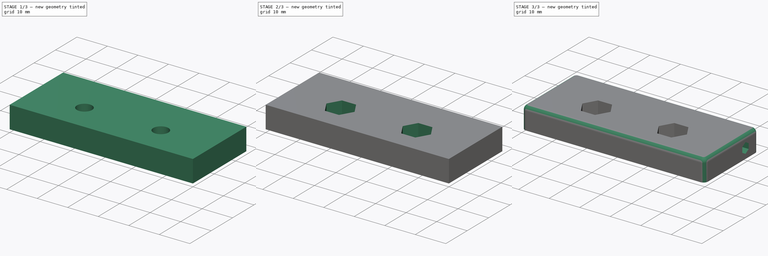
[diagram: build sequence overview — one tinted view per stage of 3, left to right]
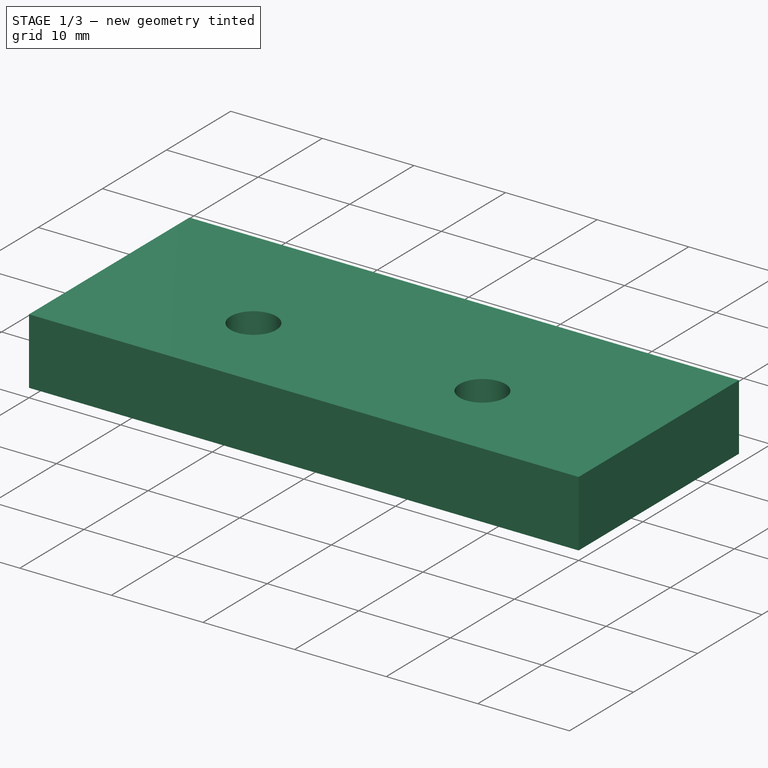
[diagram: stage 1 of 3 — iso view after this stage's code; geometry added in this stage tinted green]
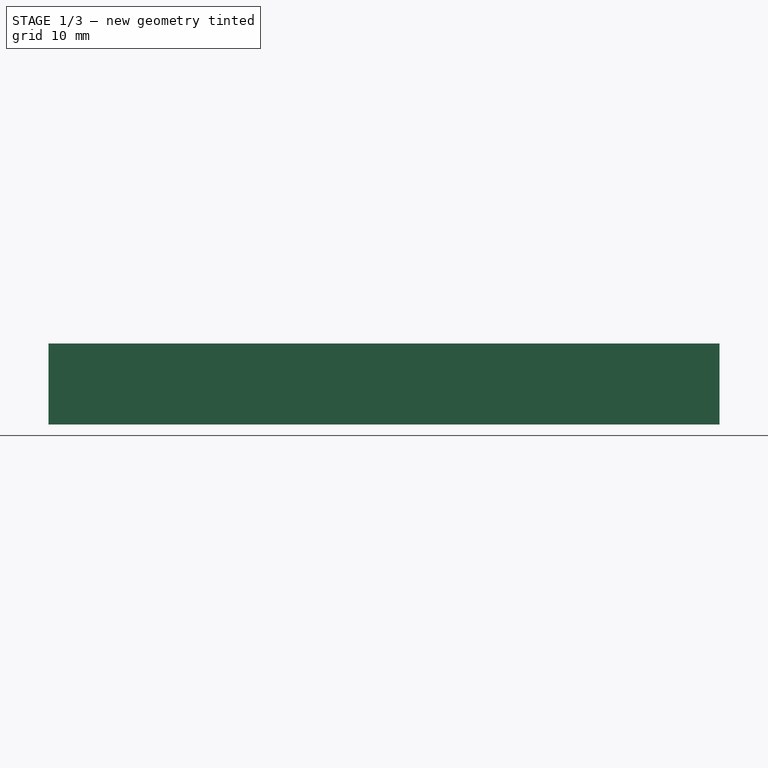
[diagram: stage 1 of 3 — front view after this stage's code; geometry added in this stage tinted green]
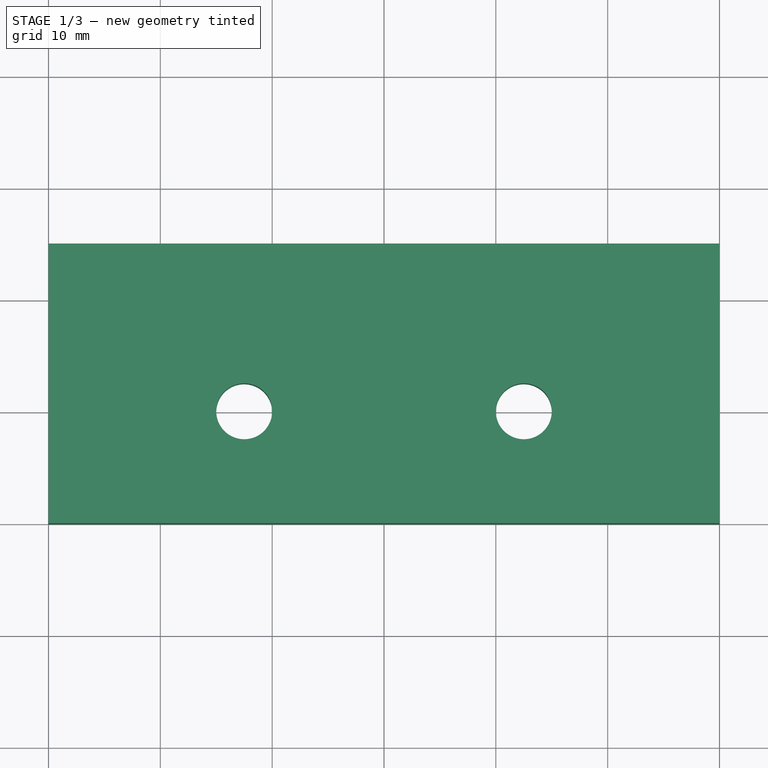
[diagram: stage 1 of 3 — top view after this stage's code; geometry added in this stage tinted green]
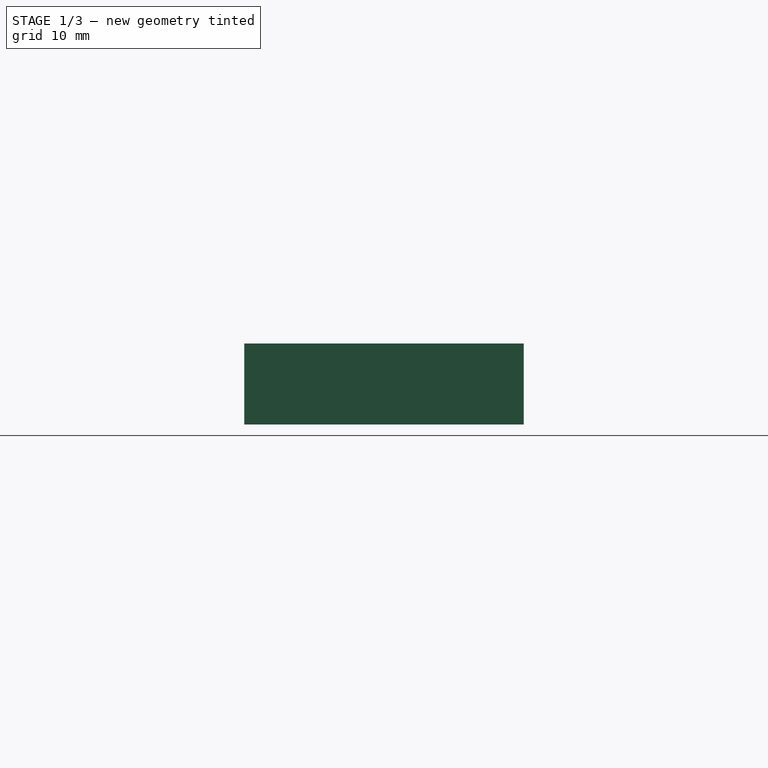
[diagram: stage 1 of 3 — right view after this stage's code; geometry added in this stage tinted green]
FCSTD DOCUMENT  (FreeCAD 0.18R15969 (Git))
Label: phrozen_hexholder
License: All rights reserved
LicenseURL: http://en.wikipedia.org/wiki/All_rights_reserved
objects: Sketcher::SketchObject×4, PartDesign::Pocket×2, PartDesign::Pad×1, PartDesign::Hole×1, PartDesign::Fillet×1, PartDesign::Body×1
note: 14 computed .brp shape members not serialized (recipe doc carries the construction recipe); baked Part::Feature solids carry a one-line shape summary decoded from their .brp

FEATURE [Sketcher::SketchObject] Sketch
  MapMode = 5
  Support = -> [XY_Plane]
  sketch-geometry (6):
    g0: LineSegment StartX=-30 StartY=-10 StartZ=0 EndX=30 EndY=-10 EndZ=0
    g1: LineSegment StartX=30 StartY=-10 StartZ=0 EndX=30 EndY=15 EndZ=0
    g2: LineSegment StartX=30 StartY=15 StartZ=0 EndX=-30 EndY=15 EndZ=0
    g3: LineSegment StartX=-30 StartY=15 StartZ=0 EndX=-30 EndY=-10 EndZ=0
    g4: LineSegment [constr] StartX=-30 StartY=15 StartZ=0 EndX=0 EndY=0 EndZ=0
    g5: LineSegment [constr] StartX=0 StartY=0 StartZ=0 EndX=30 EndY=15 EndZ=0
  constraints (16):
    c: Coincident(g0,g1)
    c: Coincident(g1,g2)
    c: Coincident(g2,g3)
    c: Coincident(g3,g0)
    c: Horizontal(g0)
    c: Horizontal(g2)
    c: Vertical(g1)
    c: Vertical(g3)
    c: Coincident(g4,g2)
    c: Coincident(g4,g-1)
    c: Coincident(g5,g-1)
    c: Coincident(g5,g1)
    c: Equal(g4,g5)
    c: DistanceX(g2,g2) = 60
    c: DistanceY(g3,g3) = 25
    c: DistanceY(g0,g-1) = 10
FEATURE [PartDesign::Pad] Pad
  Length = 7.25
  Length2 = 100
  Profile = -> Sketch
  Refine = true
  Type = 0
FEATURE [Sketcher::SketchObject] Sketch001
  MapMode = 5
  Placement = pos=(0,0,0) rot=(1,0,0;3.14159rad)
  Support = -> [Pad]
  sketch-geometry (4):
    g0: Circle CenterX=-12.5 CenterY=0 CenterZ=0 NormalX=0 NormalY=0 NormalZ=1 AngleXU=0 Radius=2.5
    g1: Circle CenterX=12.5 CenterY=0 CenterZ=0 NormalX=0 NormalY=0 NormalZ=1 AngleXU=0 Radius=2.5
    g2: LineSegment [constr] StartX=-12.5 StartY=0 StartZ=0 EndX=0 EndY=0 EndZ=0
    g3: LineSegment [constr] StartX=0 StartY=0 StartZ=0 EndX=12.5 EndY=0 EndZ=0
  constraints (10):
    c: PointOnObject(g0,g-1)
    c: PointOnObject(g1,g-1)
    c: DistanceX(g0,g1) = 25
    c: Coincident(g2,g0)
    c: Coincident(g2,g-1)
    c: Coincident(g3,g-1)
    c: Coincident(g3,g1)
    c: Equal(g2,g3)
    c: Radius(g0) = 2.5
    c: Equal(g0,g1)
FEATURE [PartDesign::Hole] Hole
  BaseFeature = -> Pad
  Depth = 25
  DepthType = 0
  Diameter = 5
  DrillPoint = 1
  DrillPointAngle = 118
  HoleCutCountersinkAngle = 90
  HoleCutDepth = 1.6
  HoleCutDiameter = 6.2
  HoleCutType = 1
  ModelActualThread = false
  Profile = -> Sketch001
  Refine = true
  Tapered = false
  TaperedAngle = 90
  ThreadAngle = 0
  ThreadClass = 0
  ThreadCutOffInner = 0
  ThreadCutOffOuter = 0
  ThreadDirection = 0
  ThreadFit = 0
  ThreadPitch = 0
  ThreadSize = 0
  ThreadType = 0
  Threaded = false
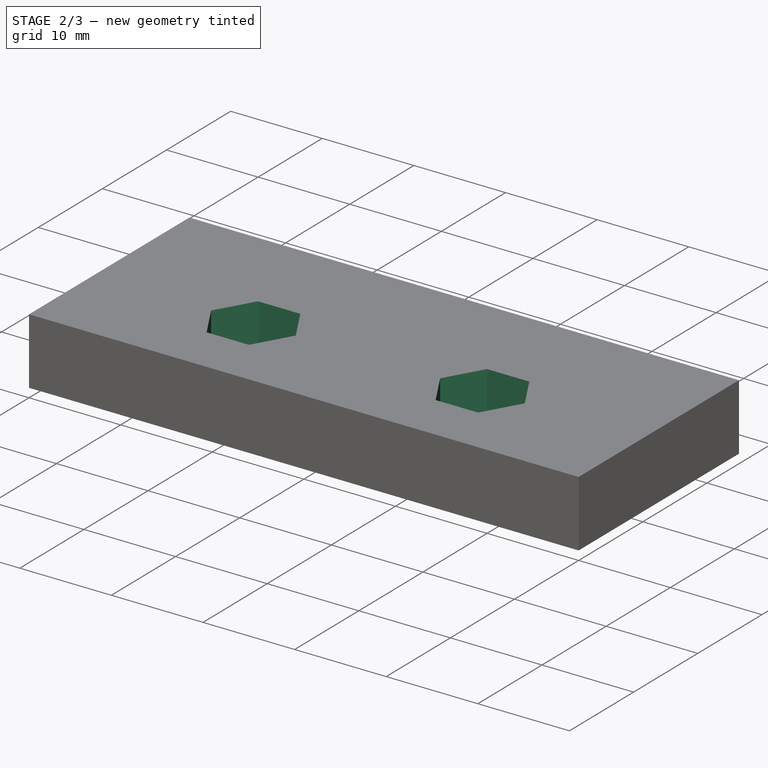
[diagram: stage 2 of 3 — iso view after this stage's code; geometry added in this stage tinted green]
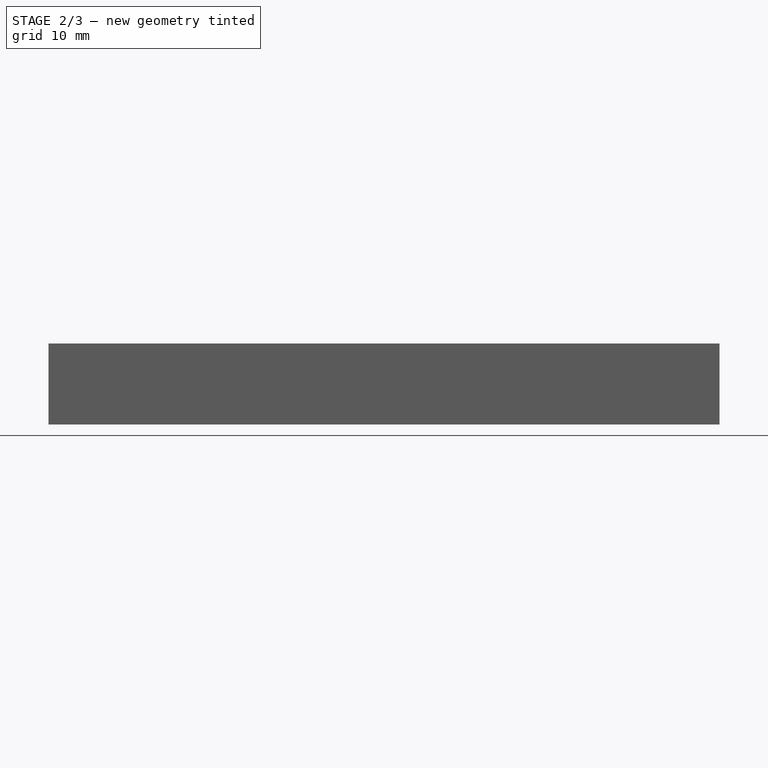
[diagram: stage 2 of 3 — front view after this stage's code; geometry added in this stage tinted green]
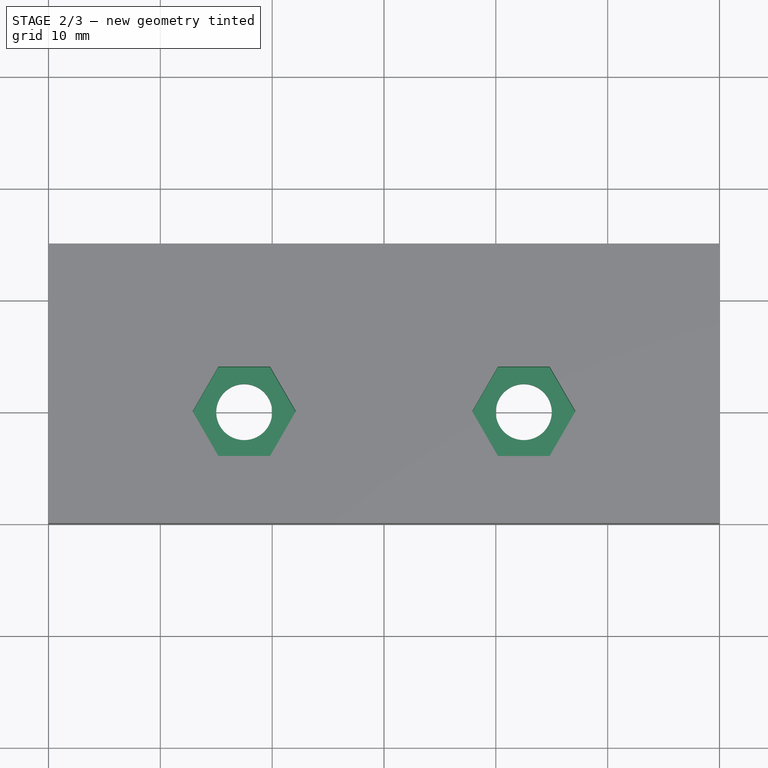
[diagram: stage 2 of 3 — top view after this stage's code; geometry added in this stage tinted green]
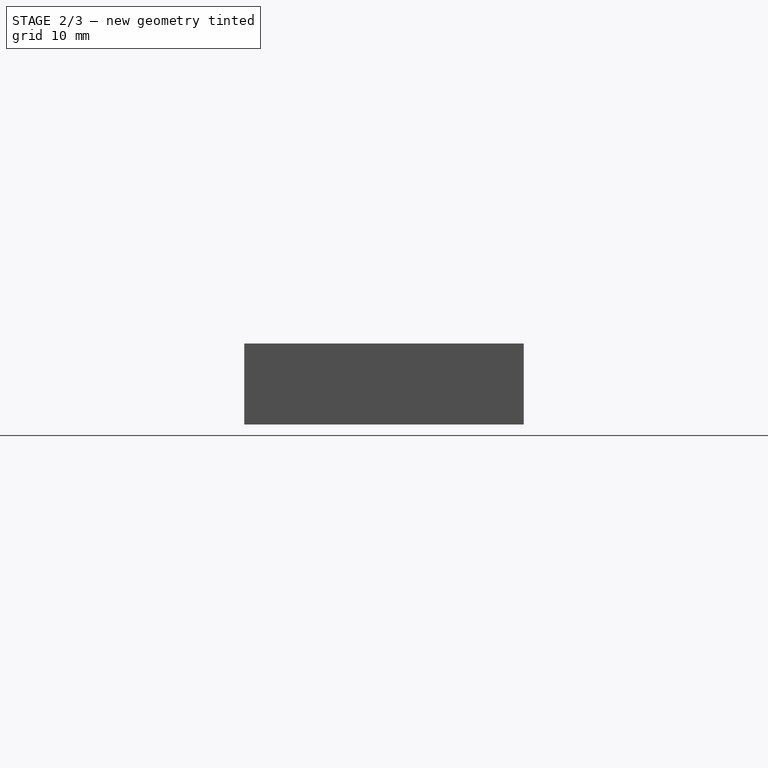
[diagram: stage 2 of 3 — right view after this stage's code; geometry added in this stage tinted green]
FEATURE [Sketcher::SketchObject] Sketch002
  ExternalGeometry = -> [Hole]
  MapMode = 5
  Placement = pos=(0,0,7.25) rot=(0,0,1;0rad)
  Support = -> [Hole]
  sketch-geometry (14):
    g0: LineSegment StartX=-10.1906 StartY=4 StartZ=0 EndX=-14.8094 EndY=4 EndZ=0
    g1: LineSegment StartX=-14.8094 StartY=4 StartZ=0 EndX=-17.1188 EndY=1.221e-13 EndZ=0
    g2: LineSegment StartX=-17.1188 StartY=1.221e-13 StartZ=0 EndX=-14.8094 EndY=-4 EndZ=0
    g3: LineSegment StartX=-14.8094 StartY=-4 StartZ=0 EndX=-10.1906 EndY=-4 EndZ=0
    g4: LineSegment StartX=-10.1906 StartY=-4 StartZ=0 EndX=-7.8812 EndY=1.474e-13 EndZ=0
    g5: LineSegment StartX=-7.8812 StartY=1.474e-13 StartZ=0 EndX=-10.1906 EndY=4 EndZ=0
    g6: Circle [constr] CenterX=-12.5 CenterY=0 CenterZ=0 NormalX=0 NormalY=0 NormalZ=1 AngleXU=0 Radius=4.6188
    g7: LineSegment StartX=10.1906 StartY=4 StartZ=0 EndX=7.8812 EndY=-4e-16 EndZ=0
    g8: LineSegment StartX=7.8812 StartY=-4e-16 StartZ=0 EndX=10.1906 EndY=-4 EndZ=0
    g9: LineSegment StartX=10.1906 StartY=-4 StartZ=0 EndX=14.8094 EndY=-4 EndZ=0
    g10: LineSegment StartX=14.8094 StartY=-4 StartZ=0 EndX=17.1188 EndY=-4e-16 EndZ=0
    g11: LineSegment StartX=17.1188 StartY=-4e-16 StartZ=0 EndX=14.8094 EndY=4 EndZ=0
    g12: LineSegment StartX=14.8094 StartY=4 StartZ=0 EndX=10.1906 EndY=4 EndZ=0
    g13: Circle [constr] CenterX=12.5 CenterY=0 CenterZ=0 NormalX=0 NormalY=0 NormalZ=1 AngleXU=0 Radius=4.6188
  constraints (32):
    c: Coincident(g0,g1)
    c: Coincident(g1,g2)
    c: Coincident(g2,g3)
    c: Coincident(g3,g4)
    c: Coincident(g4,g5)
    c: Coincident(g5,g0)
    c: Equal(g0, g1-g5) x5
    c: PointOnObject(g0,g6)
    c: PointOnObject(g1,g6)
    c: PointOnObject(g2,g6)
    c: PointOnObject(g3,g6)
    c: PointOnObject(g4,g6)
    c: PointOnObject(g5,g6)
    c: Coincident(g6,g-3)
    c: Coincident(g7,g8)
    c: Coincident(g8,g9)
    c: Coincident(g9,g10)
    c: Coincident(g10,g11)
    c: Coincident(g11,g12)
    c: Coincident(g12,g7)
    c: Equal(g7, g8-g12) x5
    c: PointOnObject(g7,g13)
    c: PointOnObject(g8,g13)
    c: PointOnObject(g9,g13)
    c: PointOnObject(g10,g13)
    c: PointOnObject(g11,g13)
    c: PointOnObject(g12,g13)
    c: Coincident(g13,g-4)
    c: Horizontal(g12)
    c: Horizontal(g0)
    c: Equal(g0,g12)
    c: DistanceY(g2,g0) = 8
FEATURE [PartDesign::Pocket] Pocket
  BaseFeature = -> Hole
  Length = 4.5
  Length2 = 100
  Profile = -> Sketch002
  Refine = true
  Type = 0
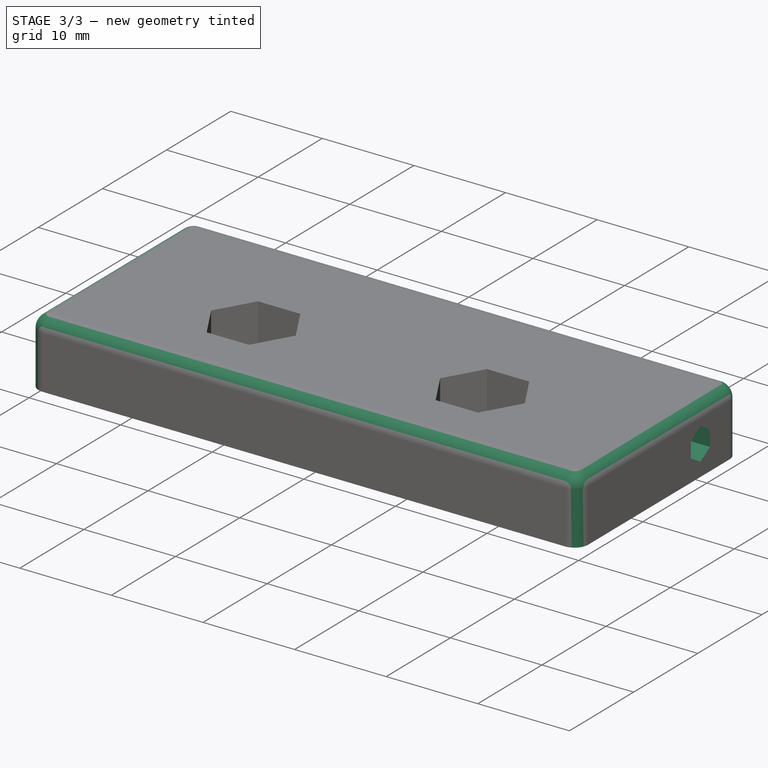
[diagram: stage 3 of 3 — iso view after this stage's code; geometry added in this stage tinted green]
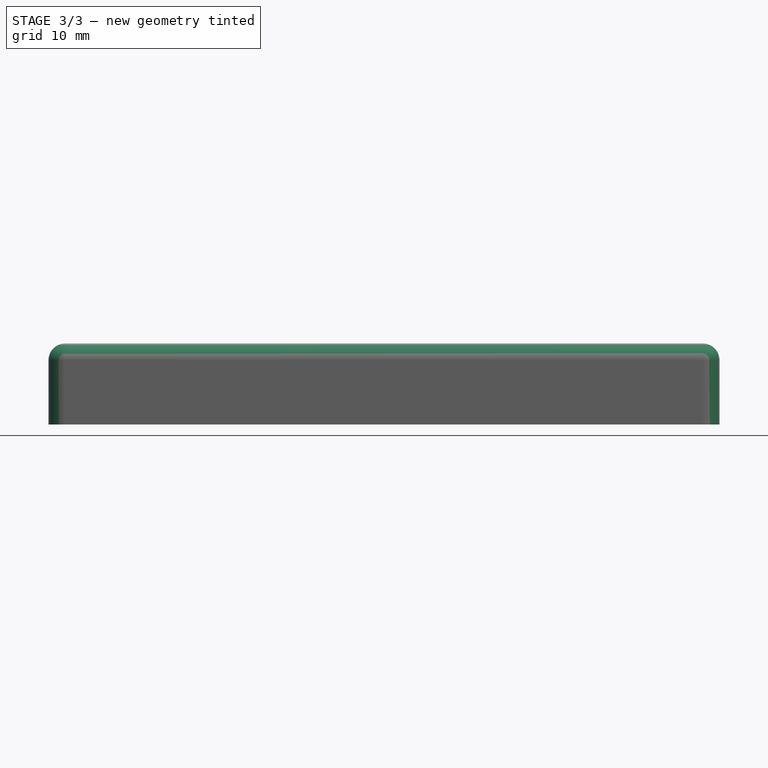
[diagram: stage 3 of 3 — front view after this stage's code; geometry added in this stage tinted green]
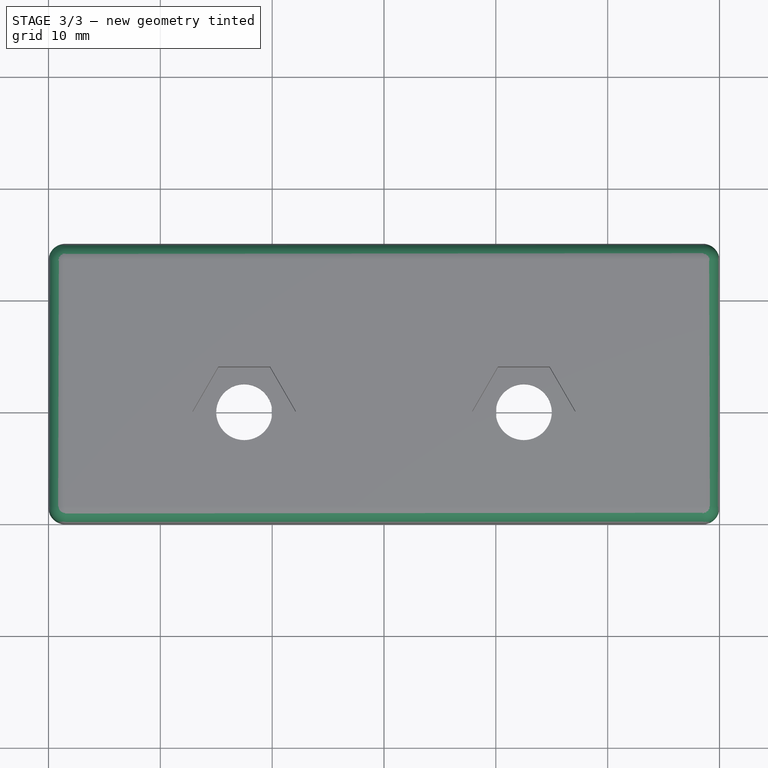
[diagram: stage 3 of 3 — top view after this stage's code; geometry added in this stage tinted green]
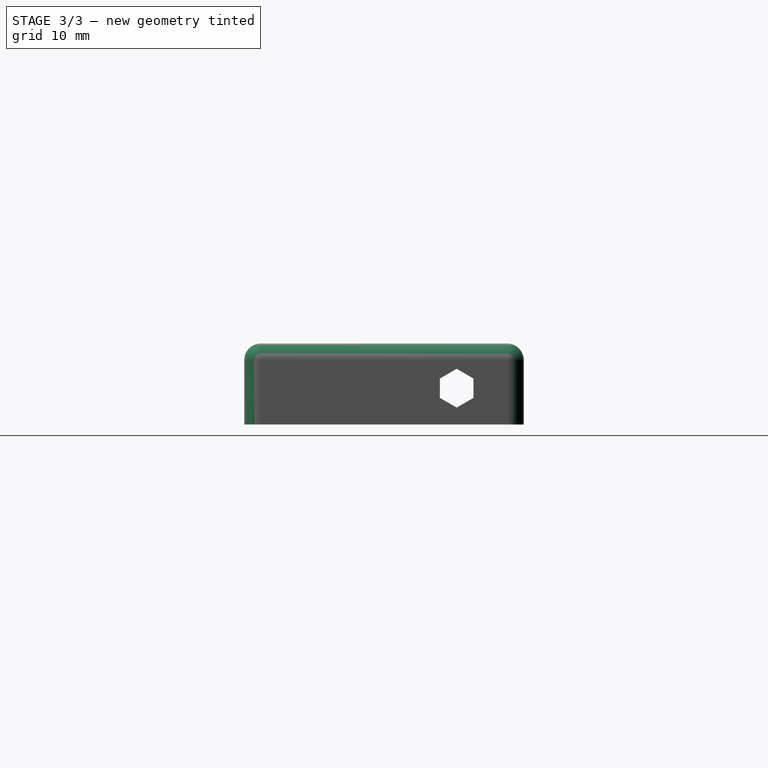
[diagram: stage 3 of 3 — right view after this stage's code; geometry added in this stage tinted green]
FEATURE [Sketcher::SketchObject] Sketch003
  ExternalGeometry = -> [Pocket]
  MapMode = 5
  Placement = pos=(-30,0,0) rot=(0.57735,-0.57735,-0.57735;2.0944rad)
  Support = -> [Pocket]
  sketch-geometry (7):
    g0: LineSegment StartX=-7.5 StartY=4.11603 StartZ=0 EndX=-9 EndY=4.98205 EndZ=0
    g1: LineSegment StartX=-9 StartY=4.98205 StartZ=0 EndX=-10.5 EndY=4.11603 EndZ=0
    g2: LineSegment StartX=-10.5 StartY=4.11603 StartZ=0 EndX=-10.5 EndY=2.38397 EndZ=0
    g3: LineSegment StartX=-10.5 StartY=2.38397 StartZ=0 EndX=-9 EndY=1.51795 EndZ=0
    g4: LineSegment StartX=-9 StartY=1.51795 StartZ=0 EndX=-7.5 EndY=2.38397 EndZ=0
    g5: LineSegment StartX=-7.5 StartY=2.38397 StartZ=0 EndX=-7.5 EndY=4.11603 EndZ=0
    g6: Circle [constr] CenterX=-9 CenterY=3.25 CenterZ=0 NormalX=0 NormalY=0 NormalZ=1 AngleXU=0 Radius=1.73205
  constraints (17):
    c: Coincident(g0,g1)
    c: Coincident(g1,g2)
    c: Coincident(g2,g3)
    c: Coincident(g3,g4)
    c: Coincident(g4,g5)
    c: Coincident(g5,g0)
    c: Equal(g0, g1-g5) x5
    c: PointOnObject(g0,g6)
    c: PointOnObject(g1,g6)
    c: PointOnObject(g2,g6)
    c: PointOnObject(g3,g6)
    c: PointOnObject(g4,g6)
    c: PointOnObject(g5,g6)
    c: Vertical(g2)
    c: DistanceX(g1,g0) = 3
    c: DistanceX(g-3,g6) = 6
    c: DistanceY(g-1,g6) = 3.25
FEATURE [PartDesign::Pocket] Pocket001
  BaseFeature = -> Pocket
  Length = 5
  Length2 = 100
  Profile = -> Sketch003
  Refine = true
  Type = 1
FEATURE [PartDesign::Fillet] Fillet
  Base = -> Pocket001 [Edge1,Edge7,Edge26,Edge4,Edge5,Edge15,Edge2,Edge16]
  BaseFeature = -> Pocket001
  Radius = 1.5
FEATURE [PartDesign::Body] Body
  Group = -> [Sketch,Pad,Sketch001,Hole,Sketch002,Pocket,Sketch003,Pocket001,Fillet]
  Origin = -> Origin
  Tip = -> Fillet
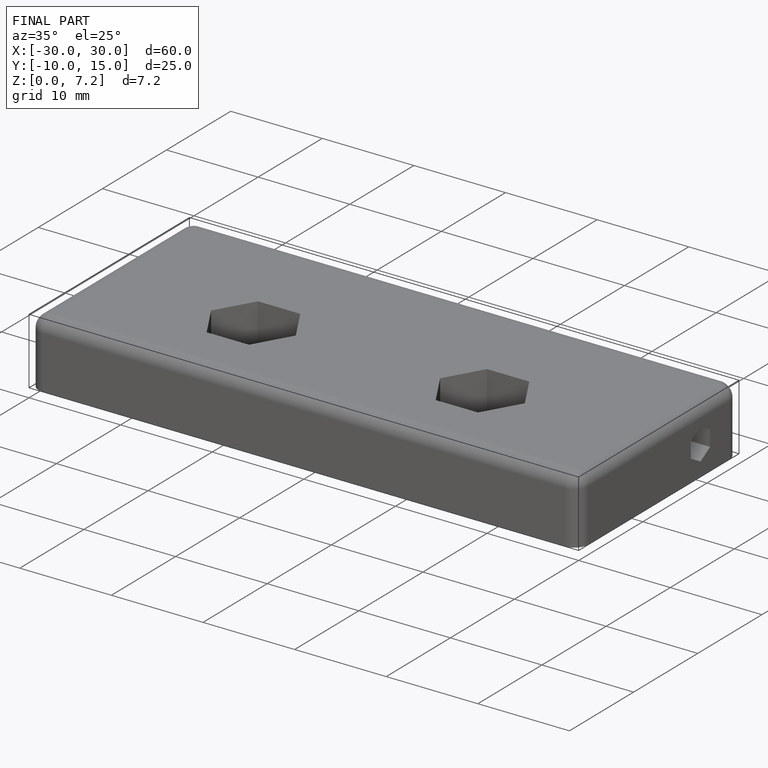
[diagram: finished part — iso view with bounding-box wireframe]
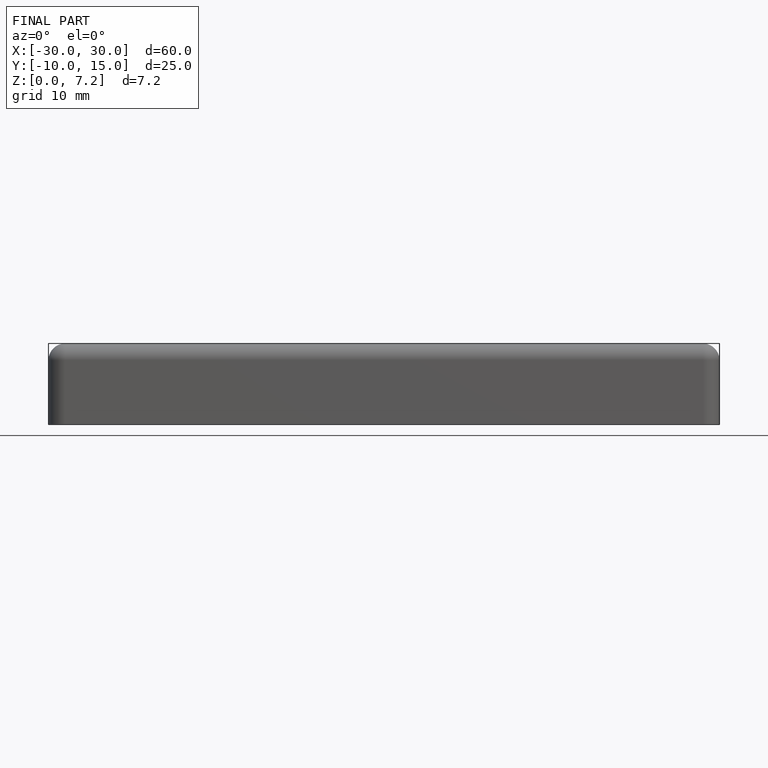
[diagram: finished part — front view with bounding-box wireframe]
